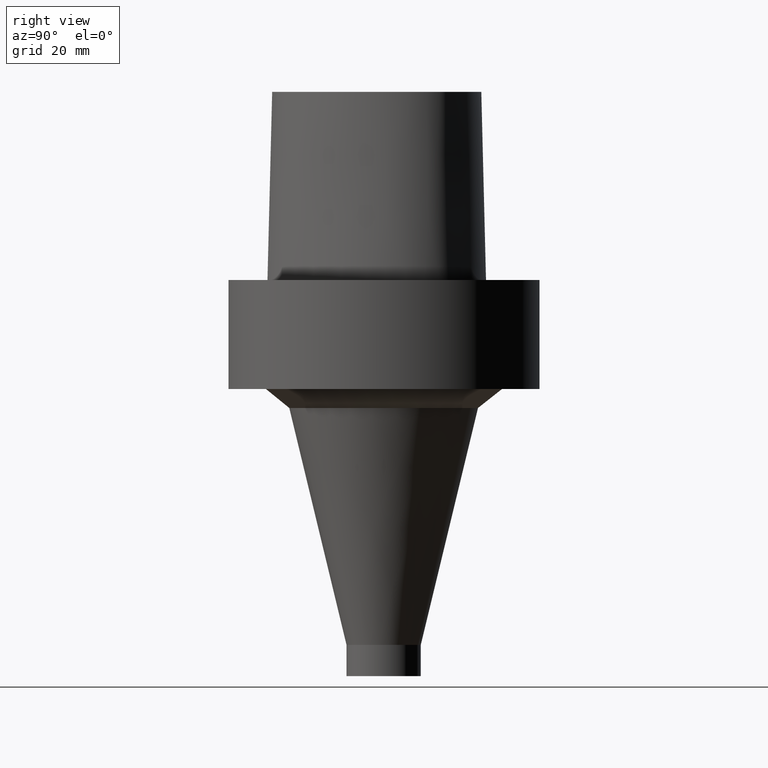
[diagram: clean part render]
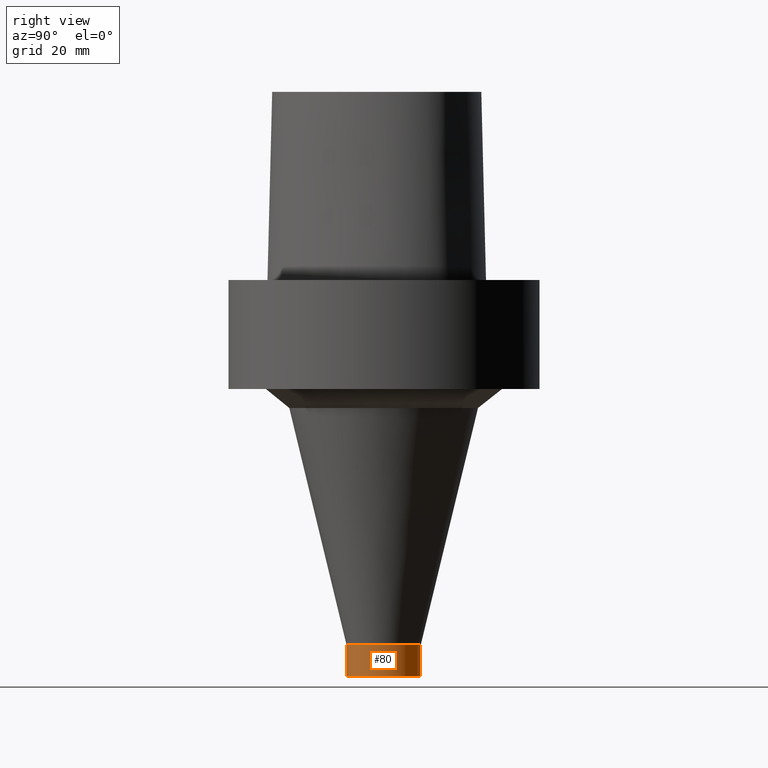
[diagram: same view with one face highlighted and labeled with its STEP entity id]
A machine part, right view. The second image highlights one B-rep face of the part: STEP entity #80.
In plain terms, the highlighted cylindrical surface (bore or boss wall) has radius 7.5 mm, axis along (-0, -0, 1).
Its self-contained STEP definition (entity closure, byte-faithful):
#80=ADVANCED_FACE('',(#102,#103),#104,.T.);
#102=FACE_BOUND('',#130,.T.);
#103=FACE_BOUND('',#131,.T.);
#104=CYLINDRICAL_SURFACE('',#132,7.5);
#130=EDGE_LOOP('',(#308));
#131=EDGE_LOOP('',(#309));
#132=AXIS2_PLACEMENT_3D('',#310,#311,#312);
#308=ORIENTED_EDGE('',*,*,#344,.F.);
#309=ORIENTED_EDGE('',*,*,#343,.T.);
#310=CARTESIAN_POINT('',(4.7057053257237E-015,9.41141065144741E-015,-76.85));
#311=DIRECTION('',(-6.12323399573677E-017,-1.22464679914735E-016,1.0));
#312=DIRECTION('',(-1.23259516440783E-032,1.0,1.22464679914735E-016));
#343=EDGE_CURVE('',#364,#364,#365,.T.);
#344=EDGE_CURVE('',#366,#366,#367,.T.);
#364=VERTEX_POINT('',#449);
#365=CIRCLE('',#450,7.5);
#366=VERTEX_POINT('',#451);
#367=CIRCLE('',#452,7.5);
#449=CARTESIAN_POINT('',(4.512823454858E-015,7.50000000000001,-73.7));
#450=AXIS2_PLACEMENT_3D('',#508,#509,#510);
#451=CARTESIAN_POINT('',(4.89858719658941E-015,7.50000000000001,-80.0));
#452=AXIS2_PLACEMENT_3D('',#511,#512,#513);
#508=CARTESIAN_POINT('',(4.512823454858E-015,9.02564690971599E-015,-73.7));
#509=DIRECTION('',(6.12323399573677E-017,1.22464679914735E-016,-1.0));
#510=DIRECTION('',(-1.23259516440783E-032,1.0,1.22464679914735E-016));
#511=CARTESIAN_POINT('',(4.89858719658941E-015,9.79717439317882E-015,-80.0));
#512=DIRECTION('',(6.12323399573677E-017,1.22464679914735E-016,-1.0));
#513=DIRECTION('',(-1.23259516440783E-032,1.0,1.22464679914735E-016));